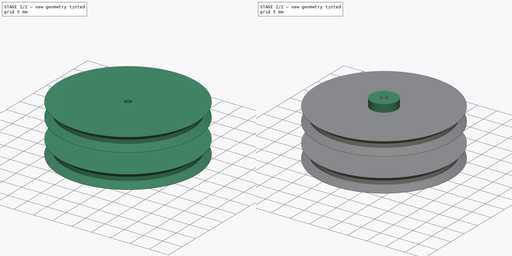
[diagram: build sequence overview — one tinted view per stage of 2, left to right]
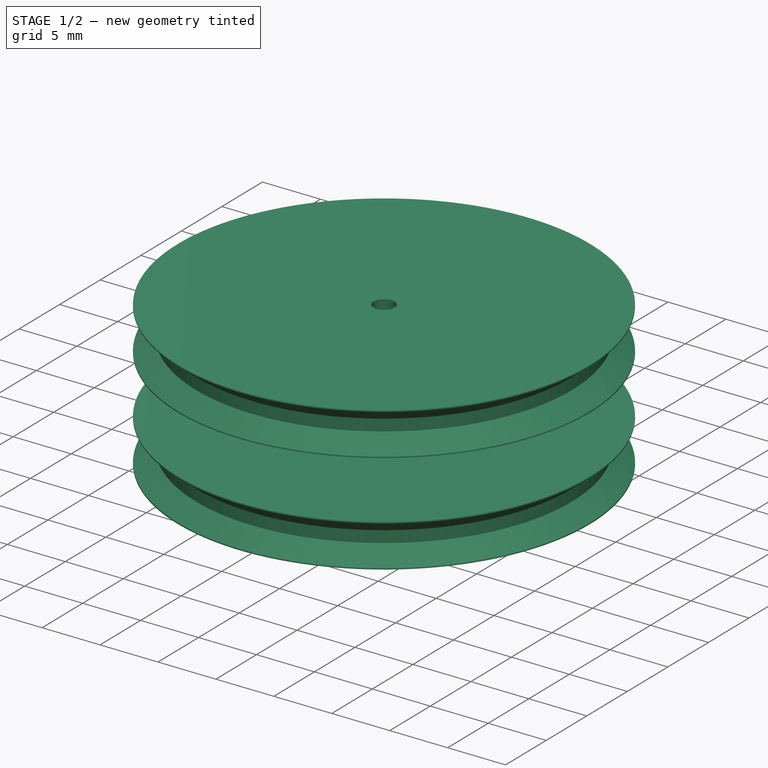
[diagram: stage 1 of 2 — iso view after this stage's code; geometry added in this stage tinted green]
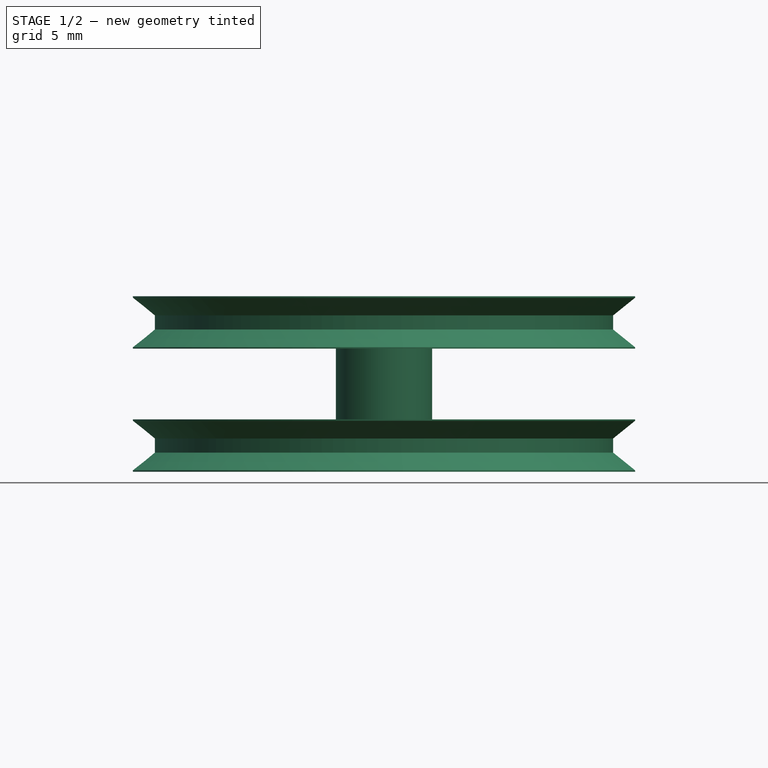
[diagram: stage 1 of 2 — front view after this stage's code; geometry added in this stage tinted green]
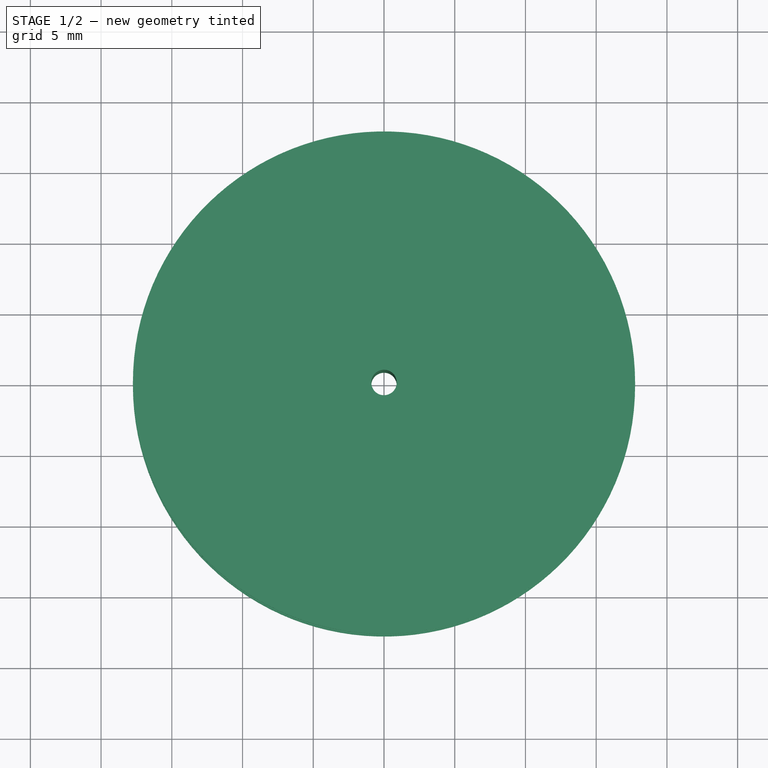
[diagram: stage 1 of 2 — top view after this stage's code; geometry added in this stage tinted green]
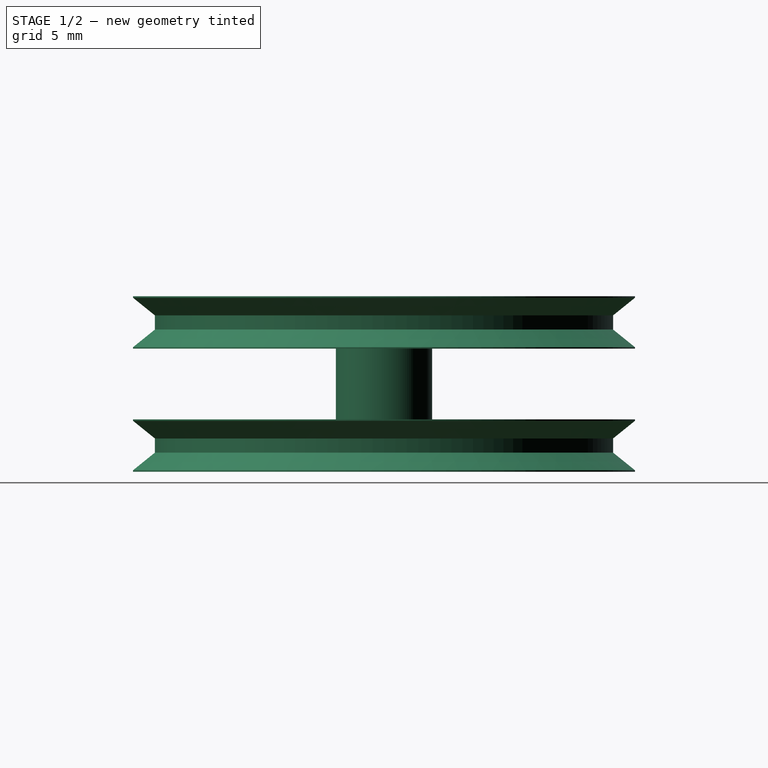
[diagram: stage 1 of 2 — right view after this stage's code; geometry added in this stage tinted green]
FCSTD DOCUMENT  (FreeCAD 1.0R39109 (Git))
Label: Rad-DerGeraet
License: All rights reserved
LicenseURL: https://en.wikipedia.org/wiki/All_rights_reserved
objects: Sketcher::SketchObject×2, PartDesign::Revolution×1, PartDesign::Pad×1, PartDesign::Body×1
note: 11 computed .brp shape members not serialized (recipe doc carries the construction recipe); baked Part::Feature solids carry a one-line shape summary decoded from their .brp

FEATURE [Sketcher::SketchObject] Sketch
  ArcFitTolerance = 1e-06
  AttachmentSupport = -> [XZ_Plane]
  FullyConstrained = false
  MakeInternals = false
  MapMode = 5
  Placement = pos=(0,0,0) rot=(1,0,0;1.5708rad)
  sketch-geometry (19):
    g0: LineSegment StartX=0.9 StartY=12.4 StartZ=0 EndX=0.9 EndY=0 EndZ=0
    g1: LineSegment [constr] StartX=16.2 StartY=12.4 StartZ=0 EndX=16.2 EndY=0 EndZ=0
    g2: LineSegment StartX=3.4 StartY=3.7 StartZ=0 EndX=3.4 EndY=8.7 EndZ=0
    g3: LineSegment StartX=3.4 StartY=8.7 StartZ=0 EndX=17.75 EndY=8.7 EndZ=0
    g4: LineSegment StartX=0.9 StartY=12.4 StartZ=0 EndX=17.75 EndY=12.4 EndZ=0
    g5: LineSegment [constr] StartX=12.8806 StartY=12.4 StartZ=0 EndX=12.8806 EndY=8.7 EndZ=0
    g6: LineSegment [constr] StartX=13.3939 StartY=3.7 StartZ=0 EndX=13.3939 EndY=0 EndZ=0
    g7: LineSegment StartX=16.2 StartY=10.05 StartZ=0 EndX=16.2 EndY=11.05 EndZ=0
    g8: LineSegment StartX=16.2 StartY=1.35 StartZ=0 EndX=16.2 EndY=2.35 EndZ=0
    g9: LineSegment StartX=16.2 StartY=2.35 StartZ=0 EndX=17.75 EndY=3.6 EndZ=0
    g10: LineSegment StartX=16.2 StartY=1.35 StartZ=0 EndX=17.75 EndY=0.1 EndZ=0
    g11: LineSegment StartX=17.75 StartY=3.6 StartZ=0 EndX=17.75 EndY=3.7 EndZ=0
    g12: LineSegment StartX=17.75 StartY=3.7 StartZ=0 EndX=3.4 EndY=3.7 EndZ=0
    g13: LineSegment StartX=0.9 StartY=0 StartZ=0 EndX=17.75 EndY=0 EndZ=0
    g14: LineSegment StartX=17.75 StartY=0 StartZ=0 EndX=17.75 EndY=0.1 EndZ=0
    g15: LineSegment StartX=17.75 StartY=12.4 StartZ=0 EndX=17.75 EndY=12.3 EndZ=0
    g16: LineSegment StartX=17.75 StartY=12.3 StartZ=0 EndX=16.2 EndY=11.05 EndZ=0
    g17: LineSegment StartX=17.75 StartY=8.7 StartZ=0 EndX=17.75 EndY=8.8 EndZ=0
    g18: LineSegment StartX=17.75 StartY=8.8 StartZ=0 EndX=16.2 EndY=10.05 EndZ=0
  constraints (58):
    c: PointOnObject(g0,g-1)
    c: Vertical(g0)
    c: Vertical(g10,g9)
    c: DistanceX(g-1,g10) = 17.75
    c: Distance(g-1,g0) = 0.9
    c: Vertical(g1)
    c: Distance(g-1,g1) = 16.2
    c: Vertical(g2)
    c: Coincident(g2,g3)
    c: Horizontal(g3)
    c: Coincident(g0,g4)
    c: Horizontal(g4)
    c: Vertical(g4,g3)
    c: Vertical(g3,g9)
    c: Distance(g0,g2) = 2.5
    c: PointOnObject(g1,g4)
    c: PointOnObject(g5,g4)
    c: PointOnObject(g5,g3)
    c: Vertical(g5)
    c: Vertical(g6)
    c: Equal(g5,g6)
    c: PointOnObject(g7,g1)
    c: PointOnObject(g7,g1)
    c: PointOnObject(g8,g1)
    c: PointOnObject(g8,g1)
    c: Coincident(g9,g8)
    c: Coincident(g10,g8)
    c: Equal(g9,g10)
    c: DistanceY(g8,g8) = 1
    c: Coincident(g11,g12)
    c: Horizontal(g12)
    c: Vertical(g11)
    c: PointOnObject(g6,g12)
    c: Coincident(g11,g9)
    c: Coincident(g12,g2)
    c: Coincident(g13,g14)
    c: Horizontal(g13)
    c: Vertical(g14)
    c: DistanceY(g14,g14) = 0.1
    c: PointOnObject(g1,g13)
    c: PointOnObject(g6,g13)
    c: Coincident(g4,g15)
    c: Vertical(g15)
    c: Coincident(g15,g16)
    c: Coincident(g16,g7)
    c: Coincident(g3,g17)
    c: Vertical(g17)
    c: Coincident(g17,g18)
    c: Coincident(g18,g7)
    c: Equal(g17,g15)
    c: Distance(g15,g15) = 0.1
    c: Equal(g18,g16)
    c: Equal(g16,g9)
    c: Distance(g12,g13) = 3.7
    c: Equal(g8,g7)
    c: Coincident(g13,g0)
    c: Coincident(g14,g10)
    c: Distance(g12,g3) = 5
FEATURE [PartDesign::Revolution] Revolution
  Angle = 360
  Angle2 = 60
  Axis = (0,2e-16,1)
  Base = (0,0,0)
  Placement = pos=(0,0,0) rot=(1,0,0;1.5708rad)
  Profile = -> Sketch
  ReferenceAxis = -> Sketch [V_Axis]
  Refine = true
  Reversed = true
  Suppressed = false
  Type = 0
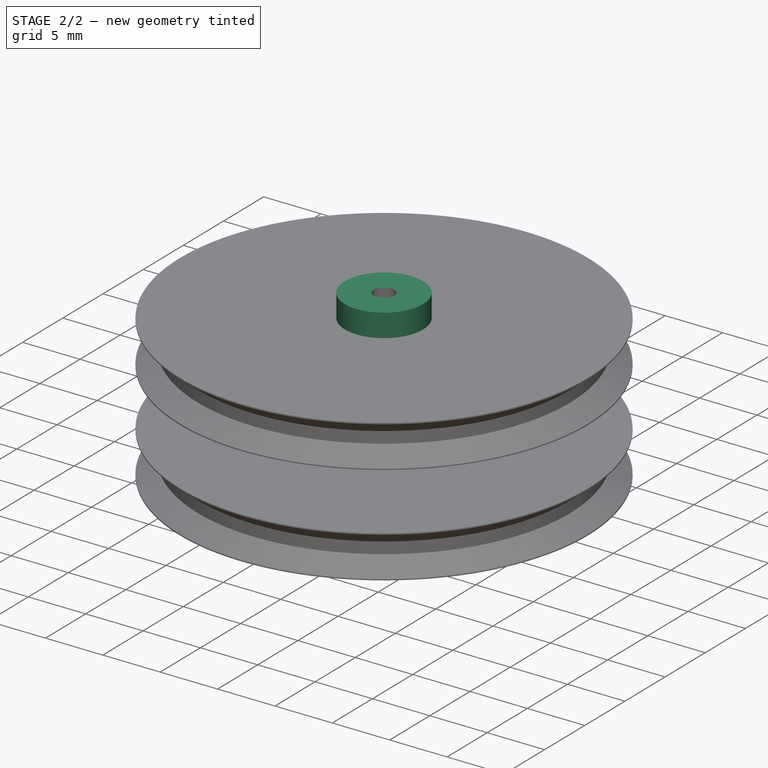
[diagram: stage 2 of 2 — iso view after this stage's code; geometry added in this stage tinted green]
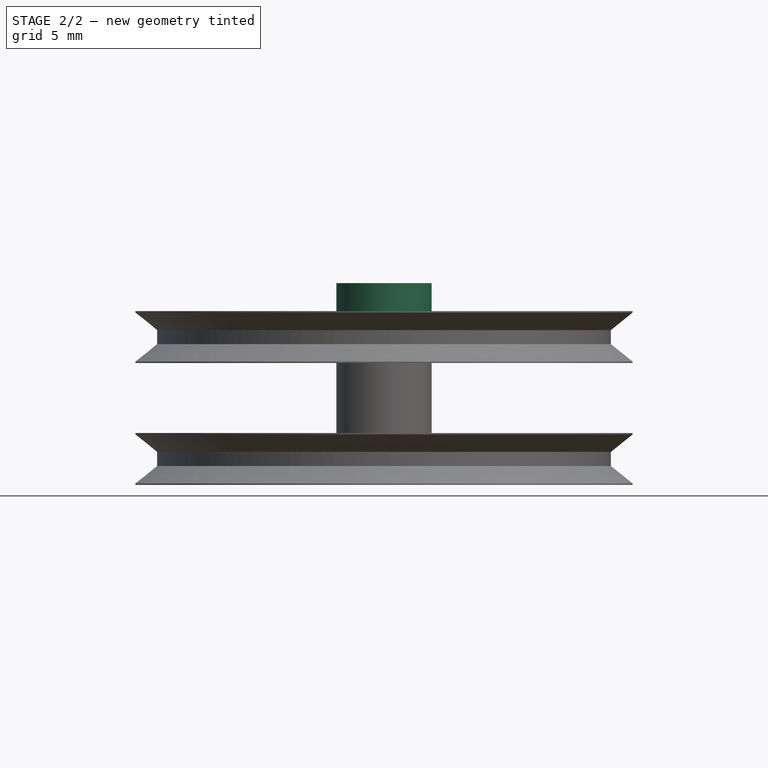
[diagram: stage 2 of 2 — front view after this stage's code; geometry added in this stage tinted green]
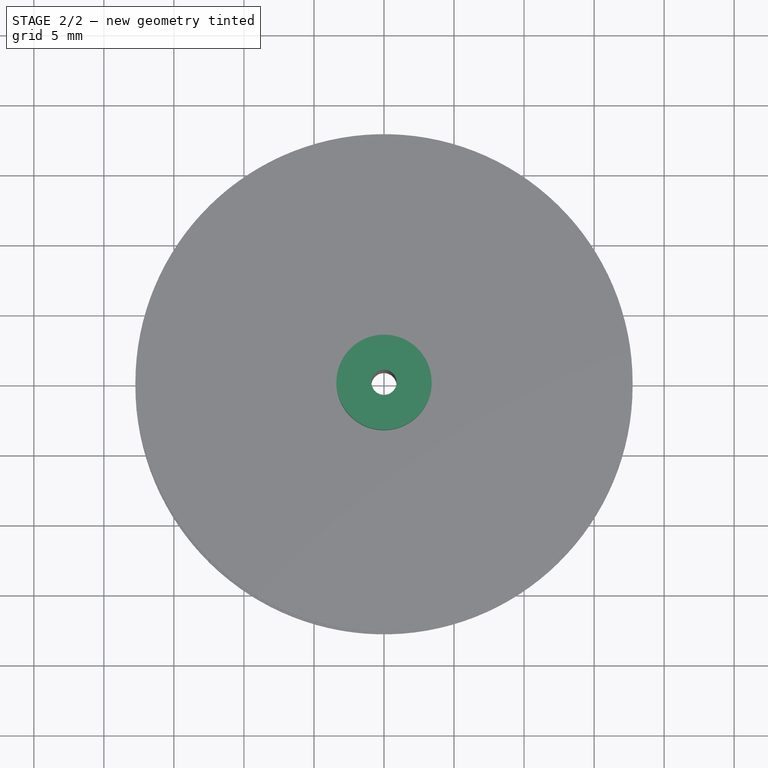
[diagram: stage 2 of 2 — top view after this stage's code; geometry added in this stage tinted green]
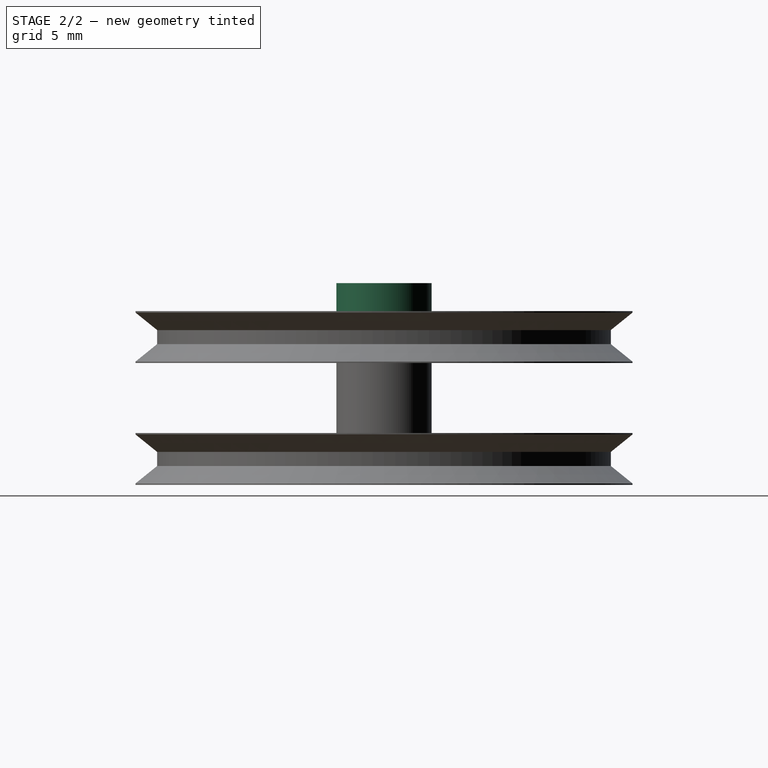
[diagram: stage 2 of 2 — right view after this stage's code; geometry added in this stage tinted green]
FEATURE [Sketcher::SketchObject] Sketch001
  ArcFitTolerance = 1e-06
  AttachmentSupport = -> [Revolution]
  FullyConstrained = true
  MakeInternals = false
  MapMode = 5
  Placement = pos=(0,5.5e-15,12.4) rot=(0,0,1;3.14159rad)
  sketch-geometry (2):
    g0: Circle CenterX=0 CenterY=0 CenterZ=0 NormalX=0 NormalY=0 NormalZ=1 AngleXU=0 Radius=0.9
    g1: Circle CenterX=0 CenterY=0 CenterZ=0 NormalX=0 NormalY=0 NormalZ=1 AngleXU=0 Radius=3.4
  constraints (4):
    c: Diameter(g0) = 1.8
    c: Coincident(g0,g-1)
    c: Diameter(g1) = 6.8
    c: Coincident(g1,g0)
FEATURE [PartDesign::Pad] Pad
  BaseFeature = -> Revolution
  Direction = (0,0,1)
  Length = 2
  Length2 = 10
  Placement = pos=(0,0,0) rot=(1,0,0;1.5708rad)
  Profile = -> Sketch001
  ReferenceAxis = -> Sketch001 [N_Axis]
  Refine = true
  Suppressed = false
  Type = 0
FEATURE [PartDesign::Body] Body  label="Körper"
  AllowCompound = false
  Group = -> [Sketch,Revolution,Sketch001,Pad]
  Origin = -> Origin
  Tip = -> Pad
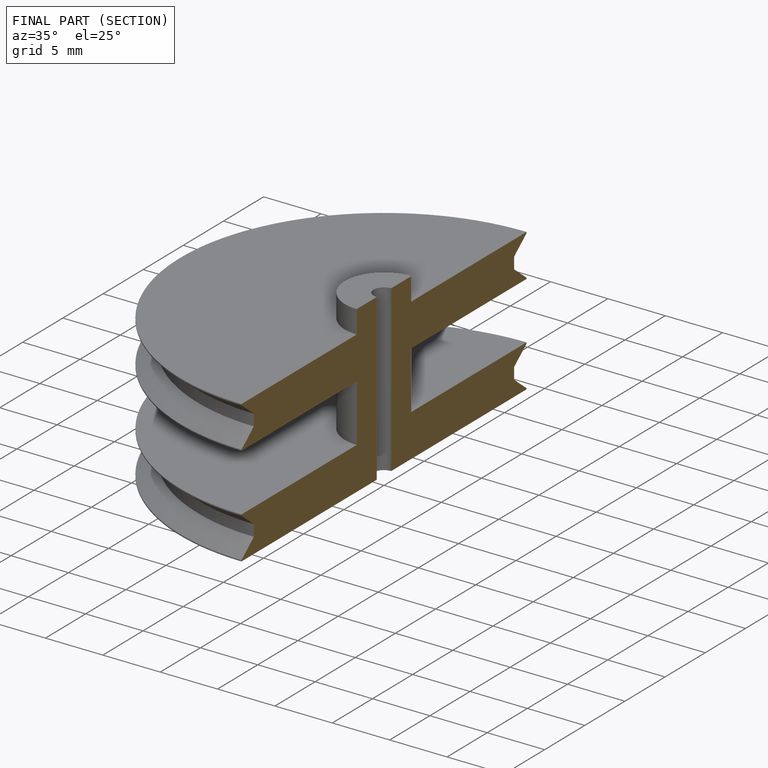
[diagram: finished part — half-section view (interior)]
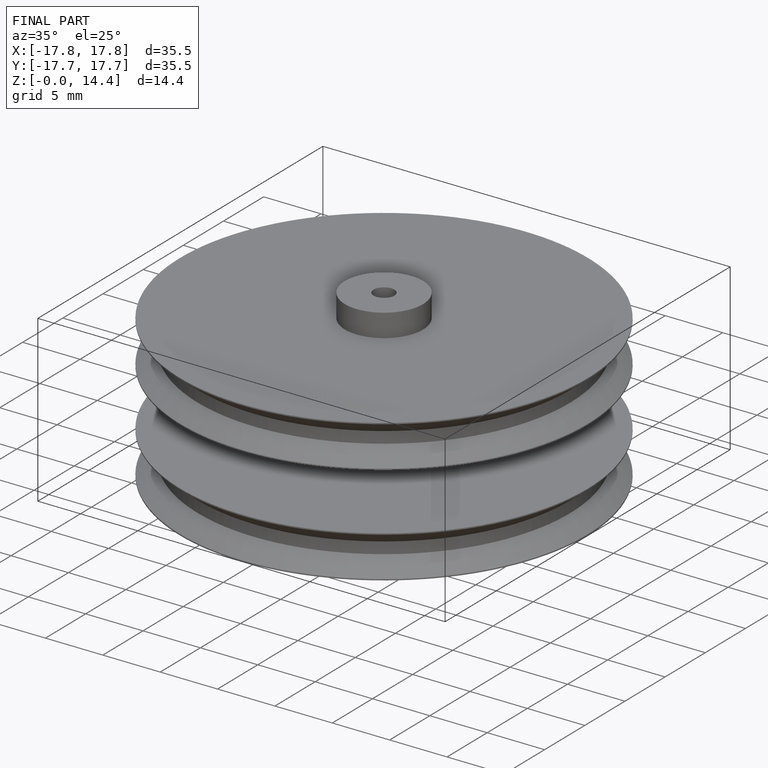
[diagram: finished part — iso view with bounding-box wireframe]
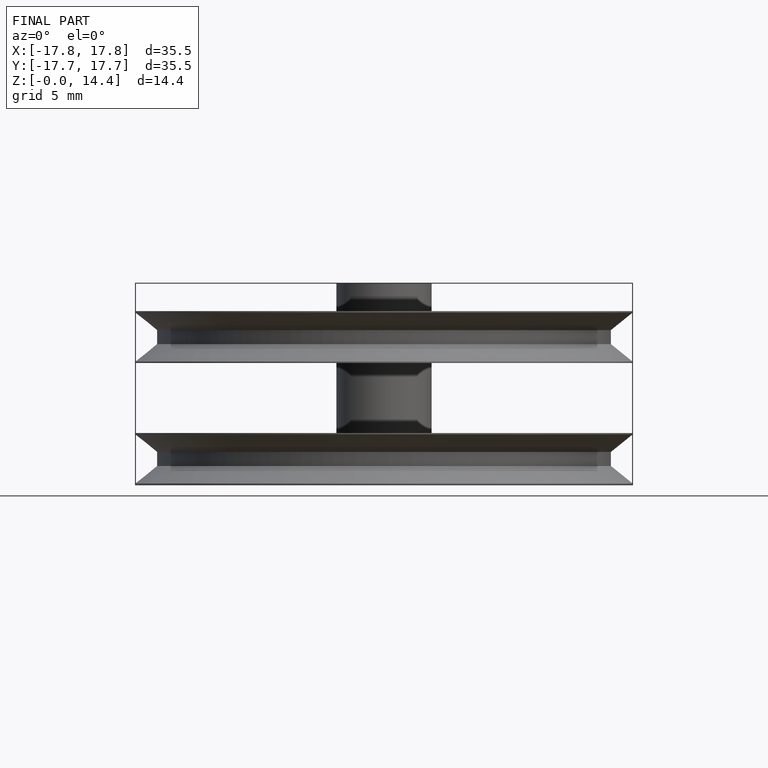
[diagram: finished part — front view with bounding-box wireframe]
